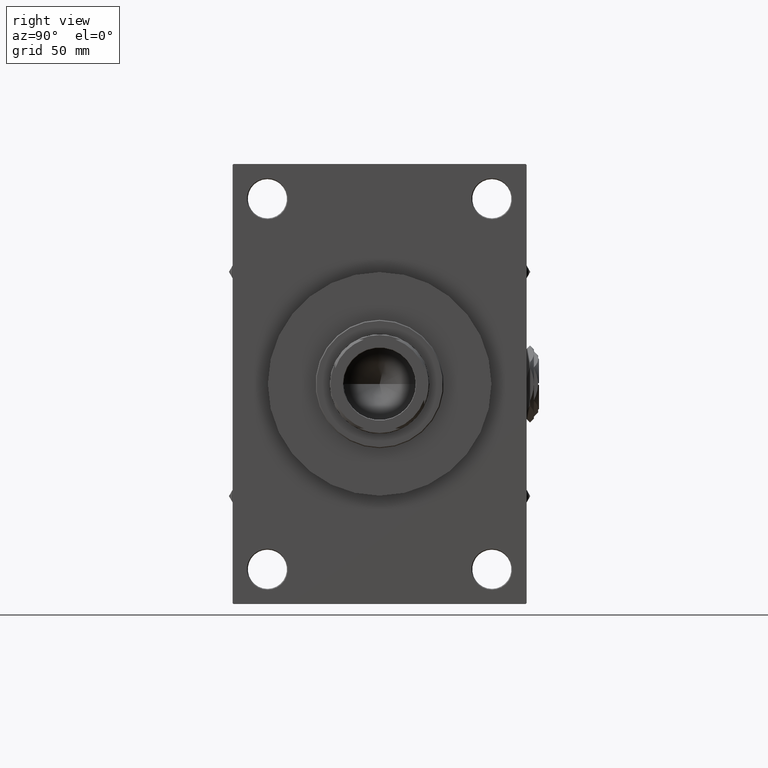
[diagram: clean part render]
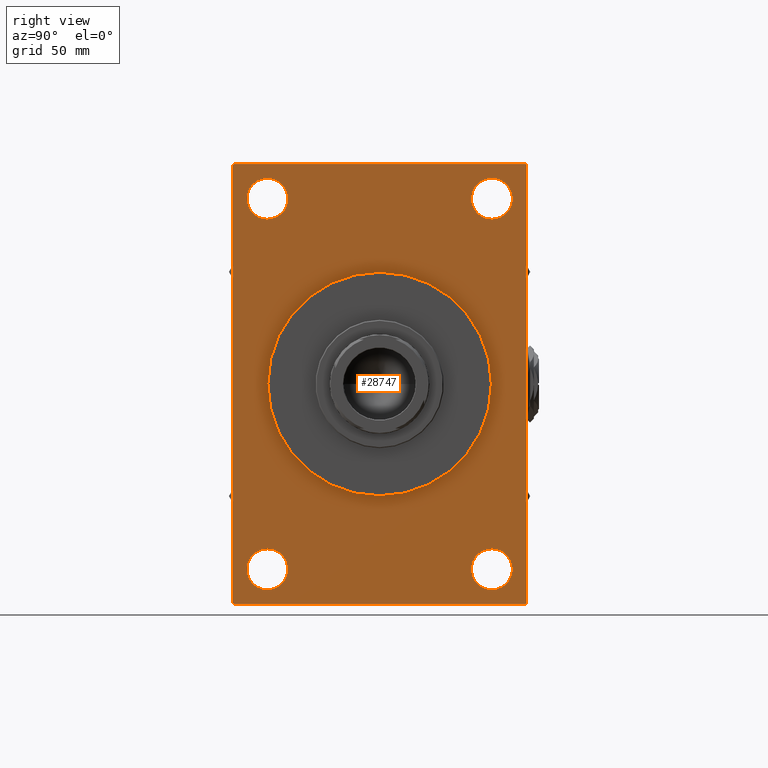
[diagram: same view with one face highlighted and labeled with its STEP entity id]
A machine part, right view. The second image highlights one B-rep face of the part: STEP entity #28747.
In plain terms, the highlighted planar face has unit normal (-1, 0, 0).
Its self-contained STEP definition (entity closure, byte-faithful):
#1088 = CIRCLE ( 'NONE', #48267, 11.49999999999989875 ) ;
#1740 = AXIS2_PLACEMENT_3D ( 'NONE', #34068, #15769, #46315 ) ;
#1835 = FACE_BOUND ( 'NONE', #39561, .T. ) ;
#2543 = CIRCLE ( 'NONE', #1740, 11.49999999999989875 ) ;
#3328 = VERTEX_POINT ( 'NONE', #21977 ) ;
#3352 = AXIS2_PLACEMENT_3D ( 'NONE', #6098, #32103, #5082 ) ;
#3423 = EDGE_LOOP ( 'NONE', ( #7321, #35129 ) ) ;
#3883 = LINE ( 'NONE', #33666, #26608 ) ;
#3930 = VERTEX_POINT ( 'NONE', #27574 ) ;
#4198 = CIRCLE ( 'NONE', #17776, 11.50000000000006573 ) ;
#4237 = DIRECTION ( 'NONE',  ( 0.000000000000000000, 0.000000000000000000, 1.000000000000000000 ) ) ;
#4503 = EDGE_CURVE ( 'NONE', #23061, #15599, #4996, .T. ) ;
#4996 = CIRCLE ( 'NONE', #46556, 62.75000000000000000 ) ;
#5030 = DIRECTION ( 'NONE',  ( 0.000000000000000000, -1.000000000000000000, -2.523234146875355505E-16 ) ) ;
#5082 = DIRECTION ( 'NONE',  ( -0.000000000000000000, 0.000000000000000000, 1.000000000000000000 ) ) ;
#5109 = VERTEX_POINT ( 'NONE', #17444 ) ;
#5587 = FACE_BOUND ( 'NONE', #45440, .T. ) ;
#5998 = EDGE_CURVE ( 'NONE', #12384, #19540, #21061, .T. ) ;
#6098 = CARTESIAN_POINT ( 'NONE',  ( 195.0000000000000000, 0.000000000000000000, 0.000000000000000000 ) ) ;
#7321 = ORIENTED_EDGE ( 'NONE', *, *, #32834, .T. ) ;
#7633 = ORIENTED_EDGE ( 'NONE', *, *, #35003, .T. ) ;
#7816 = ORIENTED_EDGE ( 'NONE', *, *, #43641, .T. ) ;
#8340 = DIRECTION ( 'NONE',  ( 0.000000000000000000, 0.000000000000000000, 1.000000000000000000 ) ) ;
#8342 = ORIENTED_EDGE ( 'NONE', *, *, #4503, .T. ) ;
#8392 = VECTOR ( 'NONE', #14509, 1000.000000000000000 ) ;
#9494 = EDGE_CURVE ( 'NONE', #19286, #3328, #25923, .T. ) ;
#10537 = CARTESIAN_POINT ( 'NONE',  ( 195.0000000000000000, 0.000000000000000000, 0.000000000000000000 ) ) ;
#10613 = DIRECTION ( 'NONE',  ( 0.000000000000000000, 0.000000000000000000, 1.000000000000000000 ) ) ;
#10662 = VECTOR ( 'NONE', #35074, 1000.000000000000000 ) ;
#11160 = CARTESIAN_POINT ( 'NONE',  ( 195.0000000000000000, -63.00000000000000000, 92.49999999999991473 ) ) ;
#11180 = EDGE_CURVE ( 'NONE', #47598, #17601, #25562, .T. ) ;
#11900 = EDGE_LOOP ( 'NONE', ( #18892, #28435 ) ) ;
#11907 = ORIENTED_EDGE ( 'NONE', *, *, #5998, .T. ) ;
#12265 = CARTESIAN_POINT ( 'NONE',  ( 195.0000000000000000, 82.00000000000004263, 123.5000000000000142 ) ) ;
#12384 = VERTEX_POINT ( 'NONE', #40050 ) ;
#12528 = LINE ( 'NONE', #39315, #25158 ) ;
#12530 = EDGE_CURVE ( 'NONE', #26055, #17358, #21275, .T. ) ;
#12695 = CARTESIAN_POINT ( 'NONE',  ( 195.0000000000000000, 63.00000000000000000, 115.5000000000000568 ) ) ;
#13337 = CARTESIAN_POINT ( 'NONE',  ( 195.0000000000000000, 82.50000000000000000, -123.5000000000000000 ) ) ;
#13602 = CARTESIAN_POINT ( 'NONE',  ( 195.0000000000000000, 0.000000000000000000, -62.75000000000000000 ) ) ;
#13863 = AXIS2_PLACEMENT_3D ( 'NONE', #14903, #30204, #45467 ) ;
#13921 = CARTESIAN_POINT ( 'NONE',  ( 195.0000000000000000, -63.00000000000000000, 103.9999999999999858 ) ) ;
#14208 = EDGE_CURVE ( 'NONE', #15599, #23061, #45352, .T. ) ;
#14509 = DIRECTION ( 'NONE',  ( 0.000000000000000000, -0.7071067811865081598, 0.7071067811865868746 ) ) ;
#14557 = ORIENTED_EDGE ( 'NONE', *, *, #14208, .T. ) ;
#14894 = EDGE_CURVE ( 'NONE', #19286, #48980, #23877, .T. ) ;
#14903 = CARTESIAN_POINT ( 'NONE',  ( 195.0000000000000000, 63.00000000000000000, -104.0000000000000142 ) ) ;
#15500 = CIRCLE ( 'NONE', #40286, 11.50000000000006573 ) ;
#15599 = VERTEX_POINT ( 'NONE', #13602 ) ;
#15769 = DIRECTION ( 'NONE',  ( -1.000000000000000000, 0.000000000000000000, -0.000000000000000000 ) ) ;
#16538 = CARTESIAN_POINT ( 'NONE',  ( 195.0000000000000000, -82.00000000000002842, -123.5000000000000142 ) ) ;
#17358 = VERTEX_POINT ( 'NONE', #11160 ) ;
#17443 = DIRECTION ( 'NONE',  ( 0.000000000000000000, 0.000000000000000000, 1.000000000000000000 ) ) ;
#17444 = CARTESIAN_POINT ( 'NONE',  ( 195.0000000000000000, -82.50000000000002842, 123.0000000000000853 ) ) ;
#17601 = VERTEX_POINT ( 'NONE', #12265 ) ;
#17776 = AXIS2_PLACEMENT_3D ( 'NONE', #13921, #44491, #17443 ) ;
#18892 = ORIENTED_EDGE ( 'NONE', *, *, #23637, .T. ) ;
#19106 = CARTESIAN_POINT ( 'NONE',  ( 195.0000000000000000, 63.00000000000000000, -104.0000000000000142 ) ) ;
#19286 = VERTEX_POINT ( 'NONE', #26433 ) ;
#19540 = VERTEX_POINT ( 'NONE', #37374 ) ;
#20049 = CARTESIAN_POINT ( 'NONE',  ( 195.0000000000000000, -82.50000000000002842, 123.4999999999999716 ) ) ;
#20157 = ORIENTED_EDGE ( 'NONE', *, *, #21160, .T. ) ;
#20592 = PLANE ( 'NONE',  #3352 ) ;
#20657 = VERTEX_POINT ( 'NONE', #23819 ) ;
#21061 = CIRCLE ( 'NONE', #13863, 11.49999999999989875 ) ;
#21160 = EDGE_CURVE ( 'NONE', #34546, #5109, #35441, .T. ) ;
#21275 = CIRCLE ( 'NONE', #49244, 11.50000000000006573 ) ;
#21668 = EDGE_LOOP ( 'NONE', ( #7816, #31840, #47124, #42985, #24462, #34126, #27653, #20157 ) ) ;
#21977 = CARTESIAN_POINT ( 'NONE',  ( 195.0000000000000000, 82.50000000000000000, -123.0000000000000995 ) ) ;
#22263 = DIRECTION ( 'NONE',  ( 0.000000000000000000, 0.000000000000000000, 1.000000000000000000 ) ) ;
#22415 = DIRECTION ( 'NONE',  ( 0.000000000000000000, 5.618537574013950123E-17, -1.000000000000000000 ) ) ;
#23061 = VERTEX_POINT ( 'NONE', #33447 ) ;
#23134 = CARTESIAN_POINT ( 'NONE',  ( 195.0000000000000000, -63.00000000000000000, 115.5000000000000426 ) ) ;
#23148 = CIRCLE ( 'NONE', #31920, 11.50000000000006573 ) ;
#23180 = DIRECTION ( 'NONE',  ( 0.000000000000000000, 0.000000000000000000, 1.000000000000000000 ) ) ;
#23362 = DIRECTION ( 'NONE',  ( -1.000000000000000000, 0.000000000000000000, -0.000000000000000000 ) ) ;
#23637 = EDGE_CURVE ( 'NONE', #41551, #25582, #23148, .T. ) ;
#23819 = CARTESIAN_POINT ( 'NONE',  ( 195.0000000000000000, -63.00000000000000000, -115.4999999999999147 ) ) ;
#23854 = VECTOR ( 'NONE', #42731, 1000.000000000000000 ) ;
#23877 = LINE ( 'NONE', #13337, #40562 ) ;
#24051 = LINE ( 'NONE', #16538, #29158 ) ;
#24462 = ORIENTED_EDGE ( 'NONE', *, *, #42374, .F. ) ;
#25158 = VECTOR ( 'NONE', #5030, 1000.000000000000000 ) ;
#25562 = LINE ( 'NONE', #40809, #8392 ) ;
#25576 = DIRECTION ( 'NONE',  ( -1.000000000000000000, 0.000000000000000000, -0.000000000000000000 ) ) ;
#25582 = VERTEX_POINT ( 'NONE', #12695 ) ;
#25923 = LINE ( 'NONE', #37163, #45967 ) ;
#26055 = VERTEX_POINT ( 'NONE', #23134 ) ;
#26433 = CARTESIAN_POINT ( 'NONE',  ( 195.0000000000000000, 82.00000000000005684, -123.5000000000000000 ) ) ;
#26608 = VECTOR ( 'NONE', #22415, 1000.000000000000000 ) ;
#26957 = CARTESIAN_POINT ( 'NONE',  ( 195.0000000000000000, -63.00000000000000000, 103.9999999999999858 ) ) ;
#27032 = DIRECTION ( 'NONE',  ( -1.000000000000000000, 0.000000000000000000, -0.000000000000000000 ) ) ;
#27101 = LINE ( 'NONE', #20049, #10662 ) ;
#27574 = CARTESIAN_POINT ( 'NONE',  ( 195.0000000000000000, -82.50000000000002842, -123.0000000000000284 ) ) ;
#27602 = EDGE_CURVE ( 'NONE', #19540, #12384, #44880, .T. ) ;
#27653 = ORIENTED_EDGE ( 'NONE', *, *, #46064, .T. ) ;
#28435 = ORIENTED_EDGE ( 'NONE', *, *, #49217, .T. ) ;
#28747 = ADVANCED_FACE ( 'NONE', ( #43638, #1835, #5587, #39360, #40120, #44144 ), #20592, .F. ) ;
#28837 = DIRECTION ( 'NONE',  ( 0.000000000000000000, 0.000000000000000000, 1.000000000000000000 ) ) ;
#29158 = VECTOR ( 'NONE', #39312, 1000.000000000000000 ) ;
#30028 = CARTESIAN_POINT ( 'NONE',  ( 195.0000000000000000, -63.00000000000000000, -104.0000000000000142 ) ) ;
#30204 = DIRECTION ( 'NONE',  ( -1.000000000000000000, 0.000000000000000000, -0.000000000000000000 ) ) ;
#31630 = DIRECTION ( 'NONE',  ( 0.000000000000000000, -1.000000000000000000, -8.410780489584517938E-17 ) ) ;
#31817 = EDGE_CURVE ( 'NONE', #20657, #49096, #2543, .T. ) ;
#31840 = ORIENTED_EDGE ( 'NONE', *, *, #47351, .T. ) ;
#31920 = AXIS2_PLACEMENT_3D ( 'NONE', #45170, #33157, #10613 ) ;
#32087 = CARTESIAN_POINT ( 'NONE',  ( 195.0000000000000000, -82.00000000000009948, 123.4999999999999716 ) ) ;
#32103 = DIRECTION ( 'NONE',  ( -1.000000000000000000, 0.000000000000000000, -0.000000000000000000 ) ) ;
#32834 = EDGE_CURVE ( 'NONE', #17358, #26055, #4198, .T. ) ;
#32898 = AXIS2_PLACEMENT_3D ( 'NONE', #19106, #23362, #8340 ) ;
#33157 = DIRECTION ( 'NONE',  ( -1.000000000000000000, 0.000000000000000000, -0.000000000000000000 ) ) ;
#33447 = CARTESIAN_POINT ( 'NONE',  ( 195.0000000000000000, 7.684658664649641591E-15, 62.75000000000000000 ) ) ;
#33666 = CARTESIAN_POINT ( 'NONE',  ( 195.0000000000000000, 82.49999999999998579, 123.5000000000000142 ) ) ;
#33869 = CARTESIAN_POINT ( 'NONE',  ( 195.0000000000000000, -63.00000000000000000, -92.50000000000011369 ) ) ;
#34068 = CARTESIAN_POINT ( 'NONE',  ( 195.0000000000000000, -63.00000000000000000, -104.0000000000000142 ) ) ;
#34126 = ORIENTED_EDGE ( 'NONE', *, *, #11180, .T. ) ;
#34546 = VERTEX_POINT ( 'NONE', #32087 ) ;
#34902 = ORIENTED_EDGE ( 'NONE', *, *, #27602, .T. ) ;
#35003 = EDGE_CURVE ( 'NONE', #49096, #20657, #1088, .T. ) ;
#35074 = DIRECTION ( 'NONE',  ( 0.000000000000000000, 0.000000000000000000, -1.000000000000000000 ) ) ;
#35129 = ORIENTED_EDGE ( 'NONE', *, *, #12530, .T. ) ;
#35241 = CARTESIAN_POINT ( 'NONE',  ( 195.0000000000000000, 0.000000000000000000, 0.000000000000000000 ) ) ;
#35441 = LINE ( 'NONE', #46241, #23854 ) ;
#36883 = EDGE_LOOP ( 'NONE', ( #14557, #8342 ) ) ;
#37163 = CARTESIAN_POINT ( 'NONE',  ( 195.0000000000000000, 82.50000000000000000, -123.0000000000000995 ) ) ;
#37374 = CARTESIAN_POINT ( 'NONE',  ( 195.0000000000000000, 63.00000000000000000, -92.50000000000011369 ) ) ;
#38940 = CARTESIAN_POINT ( 'NONE',  ( 195.0000000000000000, 63.00000000000000000, 92.49999999999992895 ) ) ;
#39312 = DIRECTION ( 'NONE',  ( 0.000000000000000000, 0.7071067811865573427, -0.7071067811865378028 ) ) ;
#39315 = CARTESIAN_POINT ( 'NONE',  ( 195.0000000000000000, 82.49999999999998579, 123.5000000000000142 ) ) ;
#39360 = FACE_BOUND ( 'NONE', #11900, .T. ) ;
#39561 = EDGE_LOOP ( 'NONE', ( #42156, #7633 ) ) ;
#39838 = CARTESIAN_POINT ( 'NONE',  ( 195.0000000000000000, 63.00000000000000000, 104.0000000000000000 ) ) ;
#40050 = CARTESIAN_POINT ( 'NONE',  ( 195.0000000000000000, 63.00000000000000000, -115.4999999999999147 ) ) ;
#40088 = DIRECTION ( 'NONE',  ( -1.000000000000000000, 0.000000000000000000, -0.000000000000000000 ) ) ;
#40120 = FACE_BOUND ( 'NONE', #36883, .T. ) ;
#40286 = AXIS2_PLACEMENT_3D ( 'NONE', #39838, #40088, #28837 ) ;
#40562 = VECTOR ( 'NONE', #31630, 1000.000000000000000 ) ;
#40809 = CARTESIAN_POINT ( 'NONE',  ( 195.0000000000000000, 82.00000000000004263, 123.5000000000000142 ) ) ;
#41551 = VERTEX_POINT ( 'NONE', #38940 ) ;
#42156 = ORIENTED_EDGE ( 'NONE', *, *, #31817, .T. ) ;
#42203 = DIRECTION ( 'NONE',  ( -1.000000000000000000, 0.000000000000000000, -0.000000000000000000 ) ) ;
#42374 = EDGE_CURVE ( 'NONE', #47598, #3328, #3883, .T. ) ;
#42731 = DIRECTION ( 'NONE',  ( -0.000000000000000000, -0.7071067811865769936, -0.7071067811865181518 ) ) ;
#42985 = ORIENTED_EDGE ( 'NONE', *, *, #9494, .T. ) ;
#43267 = CARTESIAN_POINT ( 'NONE',  ( 195.0000000000000000, 82.49999999999998579, 123.0000000000000142 ) ) ;
#43638 = FACE_BOUND ( 'NONE', #3423, .T. ) ;
#43641 = EDGE_CURVE ( 'NONE', #5109, #3930, #27101, .T. ) ;
#44144 = FACE_OUTER_BOUND ( 'NONE', #21668, .T. ) ;
#44491 = DIRECTION ( 'NONE',  ( -1.000000000000000000, 0.000000000000000000, -0.000000000000000000 ) ) ;
#44880 = CIRCLE ( 'NONE', #32898, 11.49999999999989875 ) ;
#45094 = DIRECTION ( 'NONE',  ( 0.000000000000000000, 0.000000000000000000, 1.000000000000000000 ) ) ;
#45170 = CARTESIAN_POINT ( 'NONE',  ( 195.0000000000000000, 63.00000000000000000, 104.0000000000000000 ) ) ;
#45287 = DIRECTION ( 'NONE',  ( -1.000000000000000000, 0.000000000000000000, -0.000000000000000000 ) ) ;
#45352 = CIRCLE ( 'NONE', #48535, 62.75000000000000000 ) ;
#45440 = EDGE_LOOP ( 'NONE', ( #11907, #34902 ) ) ;
#45467 = DIRECTION ( 'NONE',  ( 0.000000000000000000, 0.000000000000000000, 1.000000000000000000 ) ) ;
#45967 = VECTOR ( 'NONE', #48931, 1000.000000000000000 ) ;
#46064 = EDGE_CURVE ( 'NONE', #17601, #34546, #12528, .T. ) ;
#46241 = CARTESIAN_POINT ( 'NONE',  ( 195.0000000000000000, -82.50000000000002842, 123.0000000000000853 ) ) ;
#46315 = DIRECTION ( 'NONE',  ( 0.000000000000000000, 0.000000000000000000, 1.000000000000000000 ) ) ;
#46556 = AXIS2_PLACEMENT_3D ( 'NONE', #10537, #25576, #45094 ) ;
#47124 = ORIENTED_EDGE ( 'NONE', *, *, #14894, .F. ) ;
#47351 = EDGE_CURVE ( 'NONE', #3930, #48980, #24051, .T. ) ;
#47401 = CARTESIAN_POINT ( 'NONE',  ( 195.0000000000000000, -82.00000000000002842, -123.5000000000000142 ) ) ;
#47598 = VERTEX_POINT ( 'NONE', #43267 ) ;
#48267 = AXIS2_PLACEMENT_3D ( 'NONE', #30028, #45287, #22263 ) ;
#48535 = AXIS2_PLACEMENT_3D ( 'NONE', #35241, #27032, #4237 ) ;
#48931 = DIRECTION ( 'NONE',  ( -0.000000000000000000, 0.7071067811865769936, 0.7071067811865181518 ) ) ;
#48980 = VERTEX_POINT ( 'NONE', #47401 ) ;
#49096 = VERTEX_POINT ( 'NONE', #33869 ) ;
#49217 = EDGE_CURVE ( 'NONE', #25582, #41551, #15500, .T. ) ;
#49244 = AXIS2_PLACEMENT_3D ( 'NONE', #26957, #42203, #23180 ) ;